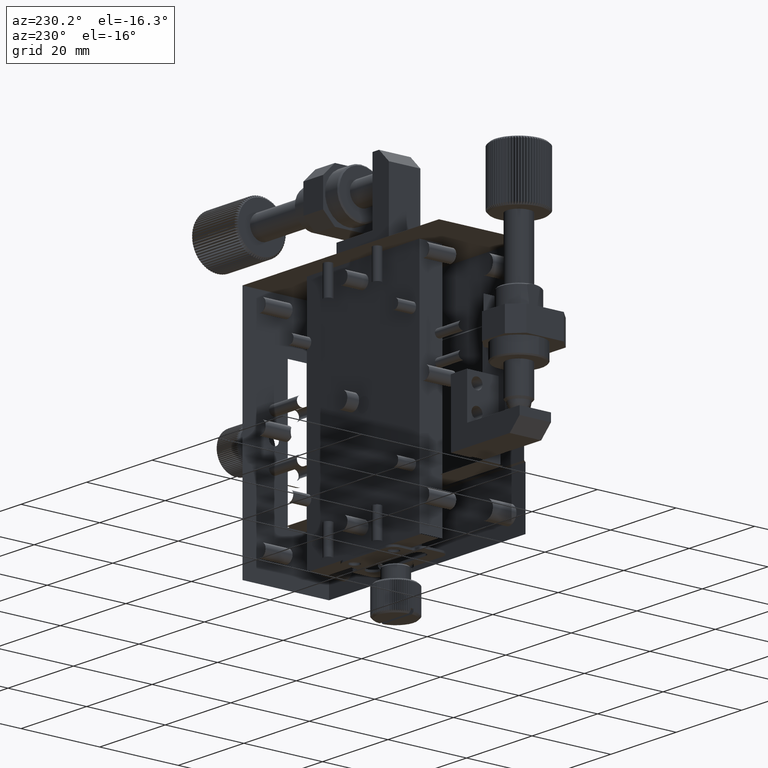
[diagram: clean part render]
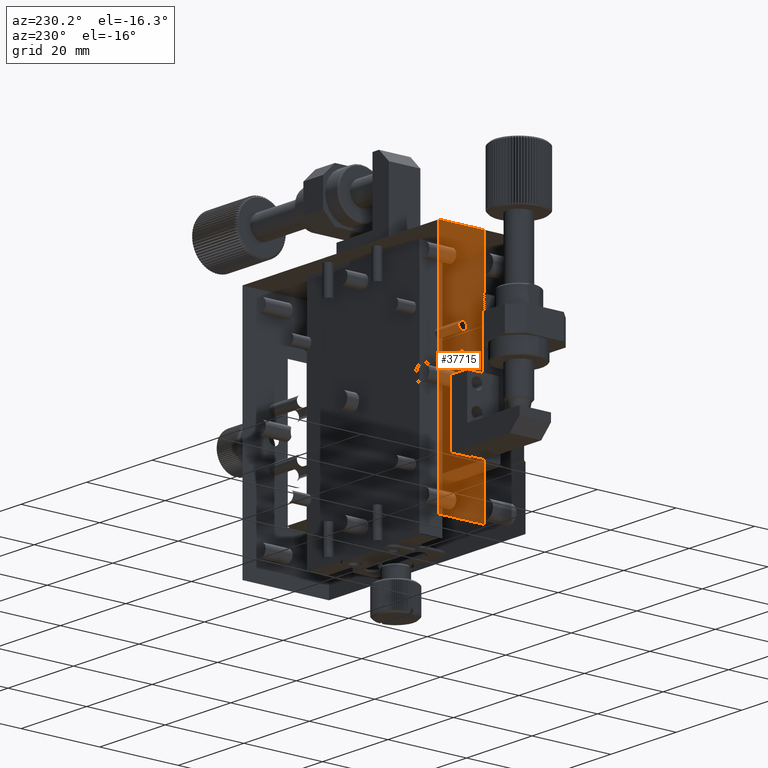
[diagram: same view with one face highlighted and labeled with its STEP entity id]
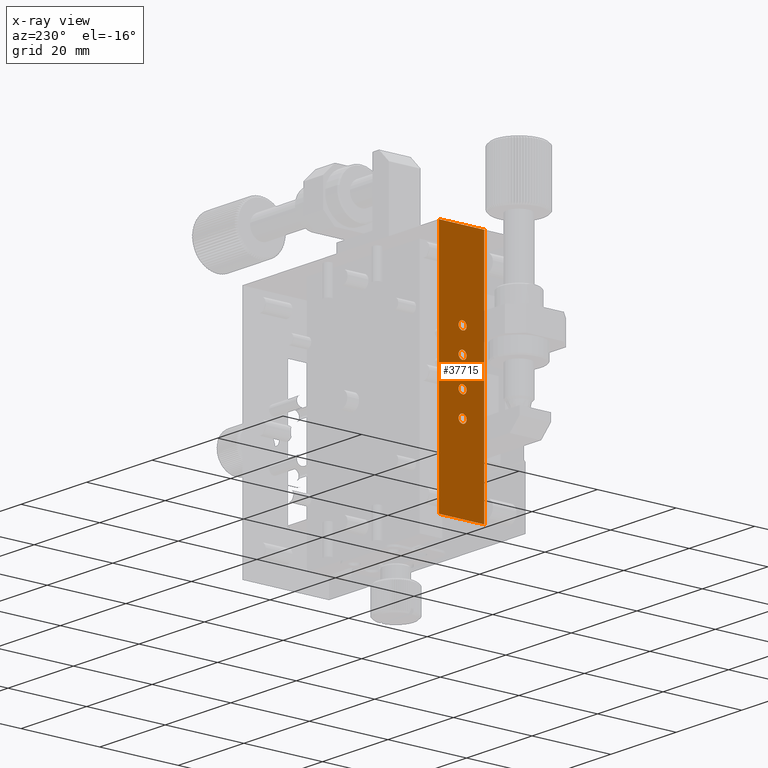
[diagram: x-ray of the same camera — body ghosted, the highlighted face saturated]
A machine part, auxiliary view. The second image highlights one B-rep face of the part: STEP entity #37715.
The next image is the same camera in x-ray: the body ghosted, the highlighted face saturated — about 1% of this face is hidden behind the body in this view.
In plain terms, the highlighted planar face has unit normal (-1, 0, 0).
Its self-contained STEP definition (entity closure, byte-faithful):
#85 = CARTESIAN_POINT ( 'NONE',  ( -30.00000000000000355, 15.68373071439870259, -8.524852134675338533 ) ) ;
#292 = CARTESIAN_POINT ( 'NONE',  ( -30.00000000000000000, 22.00000000000000000, 30.00000000000000000 ) ) ;
#452 = ORIENTED_EDGE ( 'NONE', *, *, #6138, .F. ) ;
#546 = CARTESIAN_POINT ( 'NONE',  ( -29.99999999999999645, 15.60757645001064553, -10.44703575930472539 ) ) ;
#663 = CIRCLE ( 'NONE', #19871, 1.024999999999987699 ) ;
#690 = B_SPLINE_CURVE_WITH_KNOTS ( 'NONE', 3,
 ( #9214, #23325, #39958, #15472, #19618, #8542, #33489, #33953, #8767, #30019, #26088, #40193, #37420, #1606, #5072, #2071, #44100, #2299, #16162, #15704, #12477, #29558, #29782, #43874, #8992, #1383, #8302, #1830, #15938, #44560, #12246, #23088, #37187, #5526 ),
 .UNSPECIFIED., .F., .F.,
 ( 4, 1, 1, 2, 2, 2, 1, 1, 2, 2, 2, 1, 1, 2, 2, 2, 1, 1, 2, 2, 4 ),
 ( 0.000000000000000000, 0.06249999999998401279, 0.09374999999997585265, 0.1093749999999733963, 0.1249999999999709399, 0.2499999999999712452, 0.3124999999999714118, 0.3437499999999716893, 0.3593749999999725220, 0.3749999999999733546, 0.4999999999999800160, 0.5624999999999842348, 0.5937499999999863443, 0.6093749999999868994, 0.6249999999999874545, 0.7499999999999942268, 0.8124999999999976685, 0.8437499999999997780, 0.8593750000000008882, 0.8750000000000019984, 1.000000000000000000 ),
 .UNSPECIFIED. ) ;
#1066 = DIRECTION ( 'NONE',  ( 0.000000000000000000, 1.000000000000000000, -0.000000000000000000 ) ) ;
#1383 = CARTESIAN_POINT ( 'NONE',  ( -30.00000000000000000, 16.67489895868316552, -8.725277615610032456 ) ) ;
#1606 = CARTESIAN_POINT ( 'NONE',  ( -29.99999999999999645, 16.93958878325842932, -9.910017985076700953 ) ) ;
#1830 = CARTESIAN_POINT ( 'NONE',  ( -30.00000000000000355, 16.48918571585494774, -8.597925321545107025 ) ) ;
#1894 = CARTESIAN_POINT ( 'NONE',  ( -30.00000000000000711, 17.02503363600386876, -3.435003658664259607 ) ) ;
#1991 = EDGE_CURVE ( 'NONE', #25810, #14643, #5878, .T. ) ;
#2071 = CARTESIAN_POINT ( 'NONE',  ( -30.00000000000000711, 17.00094336989112165, -9.756455882051591644 ) ) ;
#2129 = CARTESIAN_POINT ( 'NONE',  ( -29.99999999999999645, 16.98981030771011191, -3.229973941234936419 ) ) ;
#2269 = CARTESIAN_POINT ( 'NONE',  ( -29.99999999999999645, 15.55801383247924186, -4.425029260362822292 ) ) ;
#2299 = CARTESIAN_POINT ( 'NONE',  ( -30.00000000000000000, 17.02503363600386521, -9.435003658664255610 ) ) ;
#2353 = CARTESIAN_POINT ( 'NONE',  ( -30.00000000000000355, 16.90207467845458567, -3.989185715855246617 ) ) ;
#2495 = CARTESIAN_POINT ( 'NONE',  ( -30.00000000000000000, 15.72986226321698311, -2.510233839544971257 ) ) ;
#2588 = CARTESIAN_POINT ( 'NONE',  ( -30.00000000000000000, 16.62490858336915522, -4.324555434781787611 ) ) ;
#2723 = VERTEX_POINT ( 'NONE', #4389 ) ;
#3555 = CARTESIAN_POINT ( 'NONE',  ( -30.00000000000000355, 15.51081428414561714, -10.40207467845530864 ) ) ;
#4003 = CARTESIAN_POINT ( 'NONE',  ( -30.00000000000000355, 15.06041121674146233, -9.089982014923357667 ) ) ;
#4389 = CARTESIAN_POINT ( 'NONE',  ( -30.00000000000000000, 16.00000000000000000, -4.524999999999987033 ) ) ;
#4785 = CARTESIAN_POINT ( 'NONE',  ( -30.00000000000000000, 16.00000000000000000, 9.500000000000005329 ) ) ;
#4842 = CARTESIAN_POINT ( 'NONE',  ( -30.00000000000000000, 16.00000000000000000, -2.475000000000004974 ) ) ;
#4958 = CARTESIAN_POINT ( 'NONE',  ( -30.00000000000000000, 10.50000000000000000, 30.00000000000000000 ) ) ;
#5072 = CARTESIAN_POINT ( 'NONE',  ( -30.00000000000000355, 16.94704421342621714, -9.892402226707083912 ) ) ;
#5496 = CARTESIAN_POINT ( 'NONE',  ( -30.00000000000000000, 16.00000000000000000, -4.524999999999987033 ) ) ;
#5526 = CARTESIAN_POINT ( 'NONE',  ( -30.00000000000000000, 16.00000000000000000, -8.475000000000010303 ) ) ;
#5587 = CARTESIAN_POINT ( 'NONE',  ( -30.00000000000000000, 16.41001798507643983, -2.560411216741315332 ) ) ;
#5878 = LINE ( 'NONE', #37994, #25256 ) ;
#6034 = CARTESIAN_POINT ( 'NONE',  ( -30.00000000000000355, 16.31626928560129741, -4.475147865324653473 ) ) ;
#6101 = DIRECTION ( 'NONE',  ( 0.000000000000000000, 1.000000000000000000, 0.000000000000000000 ) ) ;
#6138 = EDGE_CURVE ( 'NONE', #2723, #26053, #33442, .T. ) ;
#6251 = ORIENTED_EDGE ( 'NONE', *, *, #8178, .F. ) ;
#6264 = CARTESIAN_POINT ( 'NONE',  ( -30.00000000000000000, 16.25628529579404002, -2.498988997137007395 ) ) ;
#6294 = DIRECTION ( 'NONE',  ( 1.000000000000000000, 0.000000000000000000, 0.000000000000000000 ) ) ;
#6586 = ORIENTED_EDGE ( 'NONE', *, *, #31331, .F. ) ;
#6755 = FACE_BOUND ( 'NONE', #45270, .T. ) ;
#7017 = CARTESIAN_POINT ( 'NONE',  ( -30.00000000000000000, 15.03533155404591248, -9.846846355029635234 ) ) ;
#8178 = EDGE_CURVE ( 'NONE', #17484, #25475, #690, .T. ) ;
#8302 = CARTESIAN_POINT ( 'NONE',  ( -30.00000000000000355, 16.59404891798148185, -8.659293095620610003 ) ) ;
#8542 = CARTESIAN_POINT ( 'NONE',  ( -30.00000000000001066, 16.34688624003592139, -10.46465267907720786 ) ) ;
#8685 = CARTESIAN_POINT ( 'NONE',  ( -30.00000000000000000, 22.00000000000000000, 30.00000000000000000 ) ) ;
#8767 = CARTESIAN_POINT ( 'NONE',  ( -30.00000000000000355, 16.62490858336979116, -10.32455543478116766 ) ) ;
#8992 = CARTESIAN_POINT ( 'NONE',  ( -30.00000000000000000, 16.82455543478227256, -8.875091416631320840 ) ) ;
#8994 = LINE ( 'NONE', #37423, #41845 ) ;
#9051 = CARTESIAN_POINT ( 'NONE',  ( -29.99999999999999645, 16.95952028217707763, -3.139113588592003623 ) ) ;
#9214 = CARTESIAN_POINT ( 'NONE',  ( -30.00000000000000000, 16.00000000000000000, -10.52499999999998614 ) ) ;
#9422 = CARTESIAN_POINT ( 'NONE',  ( -30.00000000000001066, 15.37509141663007917, -2.675444565219192938 ) ) ;
#9457 = VERTEX_POINT ( 'NONE', #44791 ) ;
#9728 = CARTESIAN_POINT ( 'NONE',  ( -30.00000000000000355, 16.39242354998928164, -2.552964240695265286 ) ) ;
#9864 = CARTESIAN_POINT ( 'NONE',  ( -30.00000000000000000, 15.22527761561065773, -2.825101041316087969 ) ) ;
#9935 = EDGE_LOOP ( 'NONE', ( #44105 ) ) ;
#9957 = CARTESIAN_POINT ( 'NONE',  ( -30.00000000000000000, 16.67489895868317262, -2.725277615610026682 ) ) ;
#10097 = CARTESIAN_POINT ( 'NONE',  ( -30.00000000000001066, 15.40595108201788754, -4.340706904378546227 ) ) ;
#10164 = B_SPLINE_CURVE_WITH_KNOTS ( 'NONE', 3,
 ( #20501, #37618, #13349, #2495, #34600, #41526, #13124, #27416, #9422, #9864, #34382, #37845, #16134, #33925, #12669, #23522, #44969, #16819, #26744, #30897, #17040, #20056, #31120, #33700, #13573, #27652, #10097, #37157, #2269, #30221, #40844, #26971, #30450, #5496 ),
 .UNSPECIFIED., .F., .F.,
 ( 4, 1, 1, 2, 2, 2, 1, 1, 2, 2, 2, 1, 1, 2, 2, 2, 1, 1, 2, 2, 4 ),
 ( 0.000000000000000000, 0.06250000000000213718, 0.09375000000000316414, 0.1093750000000053013, 0.1250000000000074385, 0.2500000000000044964, 0.3125000000000029976, 0.3437500000000024425, 0.3593750000000016098, 0.3750000000000008327, 0.4999999999999986677, 0.5624999999999977796, 0.5937499999999973355, 0.6093749999999973355, 0.6249999999999972244, 0.7499999999999971134, 0.8124999999999970024, 0.8437499999999967804, 0.8593749999999966693, 0.8749999999999964473, 1.000000000000000000 ),
 .UNSPECIFIED. ) ;
#10220 = CARTESIAN_POINT ( 'NONE',  ( -30.00000000000000000, 16.00000000000000000, 3.500000000000001332 ) ) ;
#10482 = CARTESIAN_POINT ( 'NONE',  ( -29.99999999999999289, 15.63911358859181000, -8.540479717823069805 ) ) ;
#10923 = DIRECTION ( 'NONE',  ( 0.000000000000000000, 0.000000000000000000, 1.000000000000000000 ) ) ;
#10943 = CARTESIAN_POINT ( 'NONE',  ( -30.00000000000000000, 15.83894536397783348, -8.483995873926383879 ) ) ;
#11167 = CARTESIAN_POINT ( 'NONE',  ( -30.00000000000000355, 15.40595108201925534, -10.34070690437992290 ) ) ;
#11883 = EDGE_LOOP ( 'NONE', ( #452, #6586 ) ) ;
#12246 = CARTESIAN_POINT ( 'NONE',  ( -30.00000000000000711, 16.39242354998928164, -8.552964240695271059 ) ) ;
#12435 = EDGE_CURVE ( 'NONE', #25475, #17484, #37727, .T. ) ;
#12477 = CARTESIAN_POINT ( 'NONE',  ( -30.00000000000000355, 16.97517624570292938, -9.183802507409302152 ) ) ;
#12531 = CARTESIAN_POINT ( 'NONE',  ( -29.99999999999999289, 16.13051960336040125, -2.475000000000004974 ) ) ;
#12669 = CARTESIAN_POINT ( 'NONE',  ( -30.00000000000000000, 15.05295578657375799, -3.107597773292976928 ) ) ;
#13124 = CARTESIAN_POINT ( 'NONE',  ( -29.99999999999999645, 15.63911358859201783, -2.540479717822875738 ) ) ;
#13213 = CARTESIAN_POINT ( 'NONE',  ( -30.00000000000000000, 10.50000000000000000, -30.00000000000000000 ) ) ;
#13219 = CARTESIAN_POINT ( 'NONE',  ( -30.00000000000000355, 16.94704421342622069, -3.892402226707185164 ) ) ;
#13349 = CARTESIAN_POINT ( 'NONE',  ( -29.99999999999999289, 15.83894536397589903, -2.483995873926382103 ) ) ;
#13573 = CARTESIAN_POINT ( 'NONE',  ( -30.00000000000000711, 15.17544456521845753, -4.124908583369621518 ) ) ;
#14150 = FACE_BOUND ( 'NONE', #11883, .T. ) ;
#14211 = CARTESIAN_POINT ( 'NONE',  ( -30.00000000000000000, 16.00000000000000000, -10.52499999999998614 ) ) ;
#14367 = DIRECTION ( 'NONE',  ( 0.000000000000000000, 0.000000000000000000, 1.000000000000000000 ) ) ;
#14399 = CARTESIAN_POINT ( 'NONE',  ( -30.00000000000001066, 15.01018969228975486, -9.770026058765436616 ) ) ;
#14633 = CARTESIAN_POINT ( 'NONE',  ( -30.00000000000000355, 14.99905663010909151, -9.243544117948735206 ) ) ;
#14643 = VERTEX_POINT ( 'NONE', #32007 ) ;
#14734 = EDGE_CURVE ( 'NONE', #25810, #45004, #29679, .T. ) ;
#14853 = CARTESIAN_POINT ( 'NONE',  ( -30.00000000000000355, 15.93491857065168915, -8.475000000000010303 ) ) ;
#15472 = CARTESIAN_POINT ( 'NONE',  ( -30.00000000000000000, 16.27013773678302755, -10.48976616045501231 ) ) ;
#15704 = CARTESIAN_POINT ( 'NONE',  ( -30.00000000000000000, 16.98981030771010836, -9.229973941234931090 ) ) ;
#15938 = CARTESIAN_POINT ( 'NONE',  ( -30.00000000000000355, 16.44198616752045083, -8.574970739636770034 ) ) ;
#15997 = CARTESIAN_POINT ( 'NONE',  ( -30.00000000000000000, 16.00000000000000000, -2.475000000000004974 ) ) ;
#16134 = CARTESIAN_POINT ( 'NONE',  ( -30.00000000000001066, 15.07497073963729584, -3.058013832478920779 ) ) ;
#16162 = CARTESIAN_POINT ( 'NONE',  ( -29.99999999999999645, 17.01606298908040316, -9.339094267999833221 ) ) ;
#16455 = CARTESIAN_POINT ( 'NONE',  ( -30.00000000000000711, 16.48918571585494419, -2.597925321545101696 ) ) ;
#16682 = CARTESIAN_POINT ( 'NONE',  ( -30.00000000000000355, 16.97517624570292938, -3.183802507409318583 ) ) ;
#16819 = CARTESIAN_POINT ( 'NONE',  ( -30.00000000000000711, 14.97496636399602465, -3.564996341336021057 ) ) ;
#17040 = CARTESIAN_POINT ( 'NONE',  ( -30.00000000000000711, 15.02482375429698536, -3.816197492590923002 ) ) ;
#17484 = VERTEX_POINT ( 'NONE', #14211 ) ;
#17637 = CARTESIAN_POINT ( 'NONE',  ( -30.00000000000000355, 15.55801383247990799, -10.42502926036348398 ) ) ;
#17866 = CARTESIAN_POINT ( 'NONE',  ( -30.00000000000000355, 15.49141759555720022, -8.598865180114545481 ) ) ;
#18082 = FACE_BOUND ( 'NONE', #43065, .T. ) ;
#18099 = CARTESIAN_POINT ( 'NONE',  ( -29.99999999999999289, 15.02482375429698358, -9.816197492590928775 ) ) ;
#18220 = VERTEX_POINT ( 'NONE', #42924 ) ;
#19618 = CARTESIAN_POINT ( 'NONE',  ( -30.00000000000000355, 16.31626928560222822, -10.47514786532464726 ) ) ;
#19871 = AXIS2_PLACEMENT_3D ( 'NONE', #4785, #40597, #37366 ) ;
#20056 = CARTESIAN_POINT ( 'NONE',  ( -30.00000000000000000, 15.03533155404591426, -3.846846355029629017 ) ) ;
#20147 = CARTESIAN_POINT ( 'NONE',  ( -30.00000000000000355, 16.84070690437897611, -4.094048917981900182 ) ) ;
#20366 = CARTESIAN_POINT ( 'NONE',  ( -30.00000000000000711, 16.06508142934830730, -4.524999999999987033 ) ) ;
#20501 = CARTESIAN_POINT ( 'NONE',  ( -30.00000000000000000, 16.00000000000000000, -2.475000000000004974 ) ) ;
#20876 = CARTESIAN_POINT ( 'NONE',  ( -30.00000000000000000, 15.72986226321842729, -8.510233839544978807 ) ) ;
#21101 = CARTESIAN_POINT ( 'NONE',  ( -30.00000000000000000, 15.15929309562115357, -8.905951082017779186 ) ) ;
#21130 = CIRCLE ( 'NONE', #35167, 1.024999999999988587 ) ;
#21939 = CARTESIAN_POINT ( 'NONE',  ( -30.00000000000000000, 10.50000000000000000, 30.00000000000000000 ) ) ;
#23088 = CARTESIAN_POINT ( 'NONE',  ( -30.00000000000000711, 16.25628529579404358, -8.498988997137015389 ) ) ;
#23150 = CARTESIAN_POINT ( 'NONE',  ( -30.00000000000000000, 16.36088641140813493, -4.459520282176939965 ) ) ;
#23325 = CARTESIAN_POINT ( 'NONE',  ( -30.00000000000000000, 16.06508142934941930, -10.52499999999998259 ) ) ;
#23518 = EDGE_CURVE ( 'NONE', #18220, #18220, #21130, .T. ) ;
#23522 = CARTESIAN_POINT ( 'NONE',  ( -30.00000000000000711, 14.99905663010908974, -3.243544117947855909 ) ) ;
#24580 = CARTESIAN_POINT ( 'NONE',  ( -30.00000000000000000, 15.09792532154550493, -9.010814284144496256 ) ) ;
#24804 = CARTESIAN_POINT ( 'NONE',  ( -30.00000000000000000, 15.74371470420661900, -10.50101100286298461 ) ) ;
#25027 = CARTESIAN_POINT ( 'NONE',  ( -30.00000000000000355, 15.17544456521688723, -10.12490858336806276 ) ) ;
#25252 = CARTESIAN_POINT ( 'NONE',  ( -30.00000000000000355, 15.22527761561034865, -8.825101041316408157 ) ) ;
#25256 = VECTOR ( 'NONE', #6101, 1000.000000000000000 ) ;
#25475 = VERTEX_POINT ( 'NONE', #34512 ) ;
#25810 = VERTEX_POINT ( 'NONE', #13213 ) ;
#26053 = VERTEX_POINT ( 'NONE', #4842 ) ;
#26088 = CARTESIAN_POINT ( 'NONE',  ( -30.00000000000000355, 16.84070690437842543, -10.09404891798244286 ) ) ;
#26114 = EDGE_CURVE ( 'NONE', #9457, #14643, #8994, .T. ) ;
#26239 = LINE ( 'NONE', #8685, #28198 ) ;
#26601 = CARTESIAN_POINT ( 'NONE',  ( -29.99999999999999289, 16.50858240444318525, -4.401134819885297311 ) ) ;
#26744 = CARTESIAN_POINT ( 'NONE',  ( -30.00000000000000355, 14.98393701091941743, -3.660905732000648172 ) ) ;
#26774 = DIRECTION ( 'NONE',  ( 0.000000000000000000, -0.000000000000000000, -1.000000000000000000 ) ) ;
#26971 = CARTESIAN_POINT ( 'NONE',  ( -29.99999999999999645, 15.74371470420441277, -4.501011002862985499 ) ) ;
#27274 = CARTESIAN_POINT ( 'NONE',  ( -30.00000000000000711, 16.59404891798148540, -2.659293095620606007 ) ) ;
#27416 = CARTESIAN_POINT ( 'NONE',  ( -30.00000000000000355, 15.49141759555562281, -2.598865180116115337 ) ) ;
#27506 = CARTESIAN_POINT ( 'NONE',  ( -29.99999999999998934, 16.77472238438972596, -4.174898958683398220 ) ) ;
#27583 = ORIENTED_EDGE ( 'NONE', *, *, #12435, .F. ) ;
#27652 = CARTESIAN_POINT ( 'NONE',  ( -29.99999999999999645, 15.32510104131646678, -4.274722384389482599 ) ) ;
#28032 = CARTESIAN_POINT ( 'NONE',  ( -30.00000000000000355, 15.65311375996460797, -8.535347320922774372 ) ) ;
#28198 = VECTOR ( 'NONE', #1066, 1000.000000000000000 ) ;
#28259 = CARTESIAN_POINT ( 'NONE',  ( -29.99999999999999645, 15.05295578657375621, -9.107597773292873455 ) ) ;
#28698 = DIRECTION ( 'NONE',  ( -1.000000000000000000, 0.000000000000000000, 0.000000000000000000 ) ) ;
#28717 = CARTESIAN_POINT ( 'NONE',  ( -30.00000000000000000, 16.00000000000000000, -10.52499999999998614 ) ) ;
#28940 = CARTESIAN_POINT ( 'NONE',  ( -30.00000000000000711, 14.98393701091940855, -9.660905732000658830 ) ) ;
#29332 = VECTOR ( 'NONE', #40318, 1000.000000000000000 ) ;
#29558 = CARTESIAN_POINT ( 'NONE',  ( -29.99999999999999289, 16.96466844595403600, -9.153153644970487335 ) ) ;
#29679 = LINE ( 'NONE', #4958, #29332 ) ;
#29782 = CARTESIAN_POINT ( 'NONE',  ( -30.00000000000000000, 16.95952028217707408, -9.139113588592001847 ) ) ;
#30019 = CARTESIAN_POINT ( 'NONE',  ( -30.00000000000000000, 16.77472238438941687, -10.17489895868371619 ) ) ;
#30221 = CARTESIAN_POINT ( 'NONE',  ( -30.00000000000000711, 15.58998201492340030, -4.439588783258455962 ) ) ;
#30307 = CARTESIAN_POINT ( 'NONE',  ( -29.99999999999999645, 16.16105463602216119, -4.516004126073612568 ) ) ;
#30450 = CARTESIAN_POINT ( 'NONE',  ( -30.00000000000000711, 15.86948039663805332, -4.524999999999987921 ) ) ;
#30765 = CARTESIAN_POINT ( 'NONE',  ( -30.00000000000000355, 16.34688624003539203, -4.464652679077214970 ) ) ;
#30897 = CARTESIAN_POINT ( 'NONE',  ( -30.00000000000000000, 15.01018969228974953, -3.770026058765427734 ) ) ;
#30991 = CARTESIAN_POINT ( 'NONE',  ( -30.00000000000000000, 16.96466844595403245, -3.153153644970503322 ) ) ;
#31120 = CARTESIAN_POINT ( 'NONE',  ( -30.00000000000000000, 15.04047971782280335, -3.860886411407844498 ) ) ;
#31331 = EDGE_CURVE ( 'NONE', #26053, #2723, #10164, .T. ) ;
#31511 = CARTESIAN_POINT ( 'NONE',  ( -30.00000000000000000, 15.86948039664026133, -10.52499999999998792 ) ) ;
#31732 = CARTESIAN_POINT ( 'NONE',  ( -30.00000000000000000, 16.00000000000000000, -8.475000000000010303 ) ) ;
#32007 = CARTESIAN_POINT ( 'NONE',  ( -30.00000000000000000, 22.00000000000000000, -30.00000000000000000 ) ) ;
#32198 = CARTESIAN_POINT ( 'NONE',  ( -30.00000000000000000, 15.32510104131725726, -10.27472238439026953 ) ) ;
#32587 = AXIS2_PLACEMENT_3D ( 'NONE', #292, #28698, #10923 ) ;
#33442 = B_SPLINE_CURVE_WITH_KNOTS ( 'NONE', 3,
 ( #40485, #20366, #30307, #44387, #6034, #30765, #23150, #26601, #2588, #27506, #20147, #2353, #34237, #37251, #13219, #37930, #44160, #1894, #44621, #2129, #16682, #30991, #9051, #44846, #41611, #9957, #27274, #16455, #41386, #5587, #9728, #6264, #12531, #15997 ),
 .UNSPECIFIED., .F., .F.,
 ( 4, 1, 1, 2, 2, 2, 1, 1, 2, 2, 2, 1, 1, 2, 2, 2, 1, 1, 2, 2, 4 ),
 ( 0.000000000000000000, 0.06250000000000800748, 0.09375000000001210143, 0.1093750000000125178, 0.1250000000000129341, 0.2500000000000148770, 0.3125000000000158762, 0.3437500000000151545, 0.3593750000000151545, 0.3750000000000151545, 0.5000000000000139888, 0.5625000000000134337, 0.5937500000000131006, 0.6093750000000124345, 0.6250000000000117684, 0.7500000000000119904, 0.8125000000000122125, 0.8437500000000123235, 0.8593750000000124345, 0.8750000000000125455, 1.000000000000000000 ),
 .UNSPECIFIED. ) ;
#33489 = CARTESIAN_POINT ( 'NONE',  ( -30.00000000000000000, 16.36088641140793953, -10.45952028217713448 ) ) ;
#33700 = CARTESIAN_POINT ( 'NONE',  ( -30.00000000000000711, 15.09886518011673395, -4.008582404445441227 ) ) ;
#33925 = CARTESIAN_POINT ( 'NONE',  ( -30.00000000000000000, 15.06041121674160443, -3.089982014923204012 ) ) ;
#33953 = CARTESIAN_POINT ( 'NONE',  ( -30.00000000000000711, 16.50858240444476621, -10.40113481988372257 ) ) ;
#34237 = CARTESIAN_POINT ( 'NONE',  ( -29.99999999999999645, 16.92502926036302568, -3.941986167520645346 ) ) ;
#34382 = CARTESIAN_POINT ( 'NONE',  ( -30.00000000000000000, 15.15929309562170779, -2.905951082017222742 ) ) ;
#34512 = CARTESIAN_POINT ( 'NONE',  ( -30.00000000000000000, 16.00000000000000000, -8.475000000000010303 ) ) ;
#34600 = CARTESIAN_POINT ( 'NONE',  ( -29.99999999999999645, 15.68373071439777355, -2.524852134675331872 ) ) ;
#34714 = ORIENTED_EDGE ( 'NONE', *, *, #26114, .F. ) ;
#34835 = EDGE_CURVE ( 'NONE', #37619, #37619, #663, .T. ) ;
#34983 = CARTESIAN_POINT ( 'NONE',  ( -29.99999999999999289, 14.97496636399602465, -9.564996341336017949 ) ) ;
#35167 = AXIS2_PLACEMENT_3D ( 'NONE', #10220, #6294, #14367 ) ;
#35217 = CARTESIAN_POINT ( 'NONE',  ( -29.99999999999999645, 15.09886518011672862, -10.00858240444544300 ) ) ;
#35665 = CARTESIAN_POINT ( 'NONE',  ( -30.00000000000000000, 15.07497073963702938, -9.058013832479192118 ) ) ;
#35897 = CARTESIAN_POINT ( 'NONE',  ( -30.00000000000000000, 14.97506727200798515, -9.370007317327941010 ) ) ;
#37157 = CARTESIAN_POINT ( 'NONE',  ( -30.00000000000001776, 15.51081428414458330, -4.402074678454269474 ) ) ;
#37187 = CARTESIAN_POINT ( 'NONE',  ( -29.99999999999999645, 16.13051960336040480, -8.475000000000010303 ) ) ;
#37251 = CARTESIAN_POINT ( 'NONE',  ( -30.00000000000000355, 16.93958878325857853, -3.910017985076549074 ) ) ;
#37366 = DIRECTION ( 'NONE',  ( 0.000000000000000000, 0.000000000000000000, 1.000000000000000000 ) ) ;
#37398 = EDGE_LOOP ( 'NONE', ( #34714, #44232, #38355, #41186 ) ) ;
#37420 = CARTESIAN_POINT ( 'NONE',  ( -29.99999999999999645, 16.92502926036276634, -9.941986167520918016 ) ) ;
#37423 = CARTESIAN_POINT ( 'NONE',  ( -30.00000000000000000, 22.00000000000000000, 0.000000000000000000 ) ) ;
#37618 = CARTESIAN_POINT ( 'NONE',  ( -30.00000000000000711, 15.93491857065058426, -2.475000000000005418 ) ) ;
#37619 = VERTEX_POINT ( 'NONE', #41527 ) ;
#37715 = ADVANCED_FACE ( 'NONE', ( #42103, #14150, #6755, #38886, #18082 ), #38431, .F. ) ;
#37727 = B_SPLINE_CURVE_WITH_KNOTS ( 'NONE', 3,
 ( #31732, #14853, #10943, #20876, #85, #28032, #10482, #17866, #38675, #25252, #21101, #24580, #35665, #4003, #28259, #14633, #35897, #34983, #28940, #14399, #18099, #7017, #42353, #35217, #25027, #32198, #11167, #3555, #17637, #39123, #546, #24804, #31511, #28717 ),
 .UNSPECIFIED., .F., .F.,
 ( 4, 1, 1, 2, 2, 2, 1, 1, 2, 2, 2, 1, 1, 2, 2, 2, 1, 1, 2, 2, 4 ),
 ( 0.000000000000000000, 0.06249999999999664158, 0.09374999999999512890, 0.1093749999999941297, 0.1249999999999931444, 0.2499999999999937272, 0.3124999999999940048, 0.3437499999999948375, 0.3593749999999952260, 0.3749999999999956146, 0.4999999999999966693, 0.5624999999999972244, 0.5937499999999973355, 0.6093749999999973355, 0.6249999999999973355, 0.7499999999999977796, 0.8124999999999980016, 0.8437499999999981126, 0.8593749999999977796, 0.8749999999999974465, 1.000000000000000000 ),
 .UNSPECIFIED. ) ;
#37845 = CARTESIAN_POINT ( 'NONE',  ( -30.00000000000000355, 15.09792532154591882, -3.010814284144079256 ) ) ;
#37930 = CARTESIAN_POINT ( 'NONE',  ( -30.00000000000000355, 17.00094336989112520, -3.756455882050714123 ) ) ;
#37994 = CARTESIAN_POINT ( 'NONE',  ( -30.00000000000000000, 22.00000000000000000, -30.00000000000000000 ) ) ;
#38355 = ORIENTED_EDGE ( 'NONE', *, *, #14734, .F. ) ;
#38431 = PLANE ( 'NONE',  #32587 ) ;
#38675 = CARTESIAN_POINT ( 'NONE',  ( -30.00000000000000000, 15.37509141663070089, -8.675444565218574766 ) ) ;
#38886 = FACE_BOUND ( 'NONE', #9935, .T. ) ;
#39123 = CARTESIAN_POINT ( 'NONE',  ( -30.00000000000000355, 15.58998201492375912, -10.43958878325882011 ) ) ;
#39958 = CARTESIAN_POINT ( 'NONE',  ( -30.00000000000000355, 16.16105463602409742, -10.51600412607360902 ) ) ;
#40193 = CARTESIAN_POINT ( 'NONE',  ( -30.00000000000000711, 16.90207467845417710, -9.989185715855663616 ) ) ;
#40318 = DIRECTION ( 'NONE',  ( 0.000000000000000000, 0.000000000000000000, 1.000000000000000000 ) ) ;
#40344 = ORIENTED_EDGE ( 'NONE', *, *, #23518, .F. ) ;
#40485 = CARTESIAN_POINT ( 'NONE',  ( -30.00000000000000000, 16.00000000000000000, -4.524999999999987033 ) ) ;
#40597 = DIRECTION ( 'NONE',  ( 1.000000000000000000, 0.000000000000000000, 0.000000000000000000 ) ) ;
#40844 = CARTESIAN_POINT ( 'NONE',  ( -30.00000000000000355, 15.60757645001092442, -4.447035759304729829 ) ) ;
#41186 = ORIENTED_EDGE ( 'NONE', *, *, #1991, .T. ) ;
#41386 = CARTESIAN_POINT ( 'NONE',  ( -29.99999999999999645, 16.44198616752045083, -2.574970739636767370 ) ) ;
#41526 = CARTESIAN_POINT ( 'NONE',  ( -30.00000000000000000, 15.65311375996408394, -2.535347320922769487 ) ) ;
#41527 = CARTESIAN_POINT ( 'NONE',  ( -30.00000000000000000, 16.00000000000000000, 10.52499999999999325 ) ) ;
#41611 = CARTESIAN_POINT ( 'NONE',  ( -30.00000000000000000, 16.82455543478227611, -2.875091416631316399 ) ) ;
#41845 = VECTOR ( 'NONE', #26774, 1000.000000000000000 ) ;
#42103 = FACE_OUTER_BOUND ( 'NONE', #37398, .T. ) ;
#42353 = CARTESIAN_POINT ( 'NONE',  ( -29.99999999999999645, 15.04047971782280158, -9.860886411407848939 ) ) ;
#42855 = EDGE_CURVE ( 'NONE', #45004, #9457, #26239, .T. ) ;
#42924 = CARTESIAN_POINT ( 'NONE',  ( -30.00000000000000000, 16.00000000000000000, 4.524999999999989697 ) ) ;
#43065 = EDGE_LOOP ( 'NONE', ( #40344 ) ) ;
#43874 = CARTESIAN_POINT ( 'NONE',  ( -30.00000000000000000, 16.90113481988419863, -8.991417595555715181 ) ) ;
#44100 = CARTESIAN_POINT ( 'NONE',  ( -29.99999999999999289, 17.02493272799223334, -9.629992682671469240 ) ) ;
#44105 = ORIENTED_EDGE ( 'NONE', *, *, #34835, .F. ) ;
#44160 = CARTESIAN_POINT ( 'NONE',  ( -30.00000000000000000, 17.02493272799223689, -3.629992682671470572 ) ) ;
#44232 = ORIENTED_EDGE ( 'NONE', *, *, #42855, .F. ) ;
#44387 = CARTESIAN_POINT ( 'NONE',  ( -30.00000000000000355, 16.27013773678156383, -4.489766160455023858 ) ) ;
#44560 = CARTESIAN_POINT ( 'NONE',  ( -30.00000000000001066, 16.41001798507645049, -8.560411216741325546 ) ) ;
#44621 = CARTESIAN_POINT ( 'NONE',  ( -30.00000000000000355, 17.01606298908040316, -3.339094267999847432 ) ) ;
#44791 = CARTESIAN_POINT ( 'NONE',  ( -30.00000000000000000, 22.00000000000000000, 30.00000000000000000 ) ) ;
#44846 = CARTESIAN_POINT ( 'NONE',  ( -30.00000000000001066, 16.90113481988420219, -2.991417595555709408 ) ) ;
#44969 = CARTESIAN_POINT ( 'NONE',  ( -30.00000000000000000, 14.97506727200798515, -3.370007317327948115 ) ) ;
#45004 = VERTEX_POINT ( 'NONE', #21939 ) ;
#45270 = EDGE_LOOP ( 'NONE', ( #6251, #27583 ) ) ;